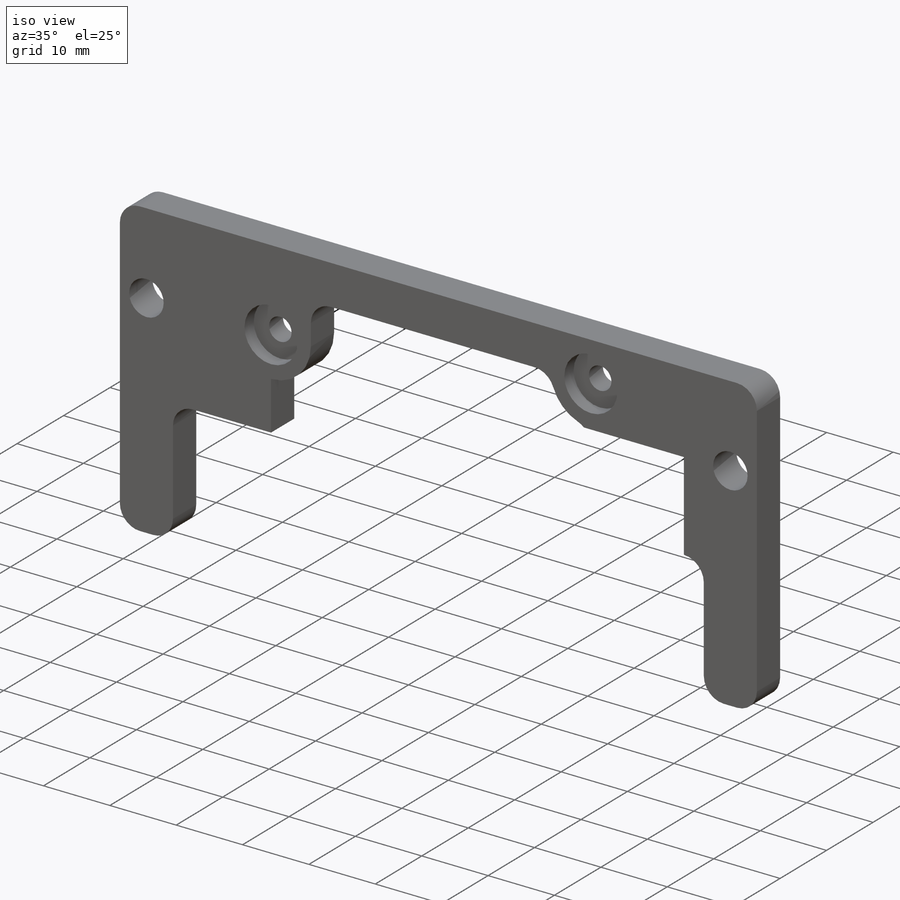
[diagram: iso view]
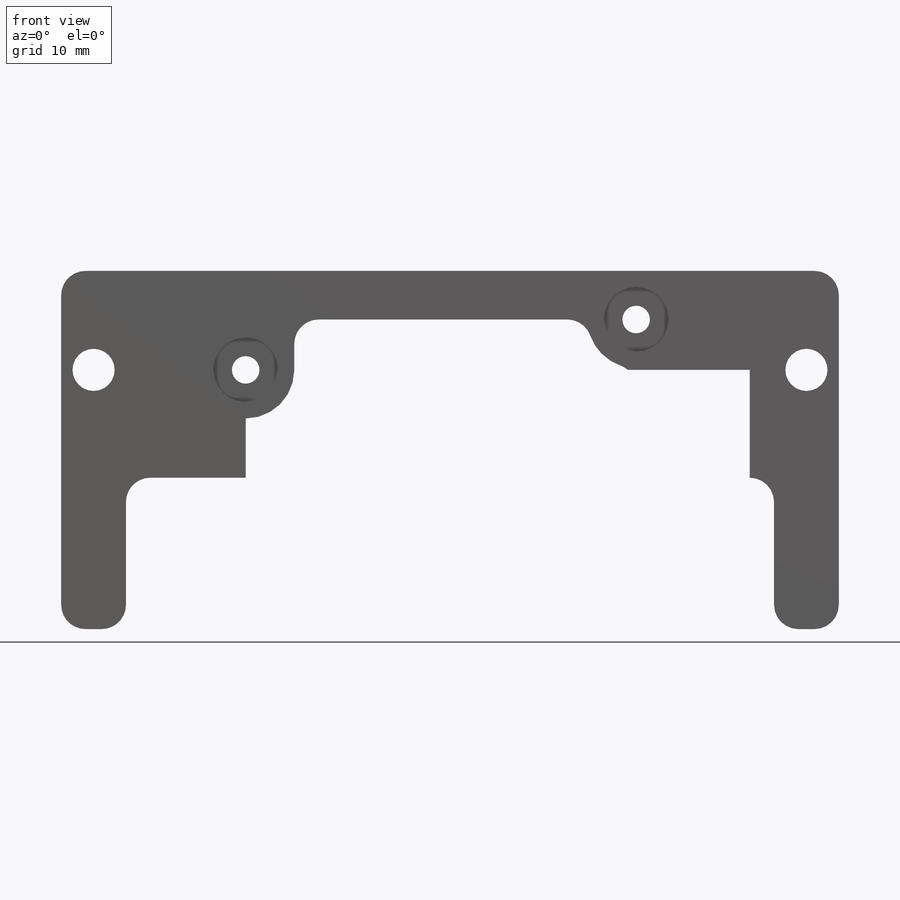
[diagram: front view]
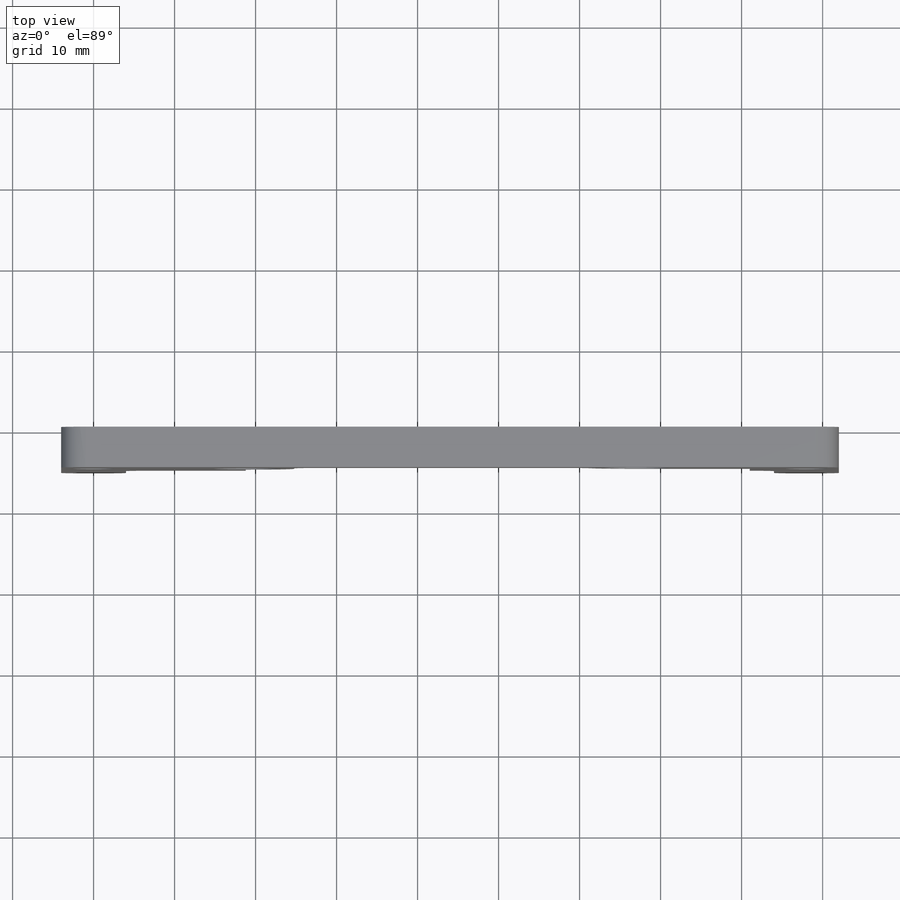
[diagram: top view]
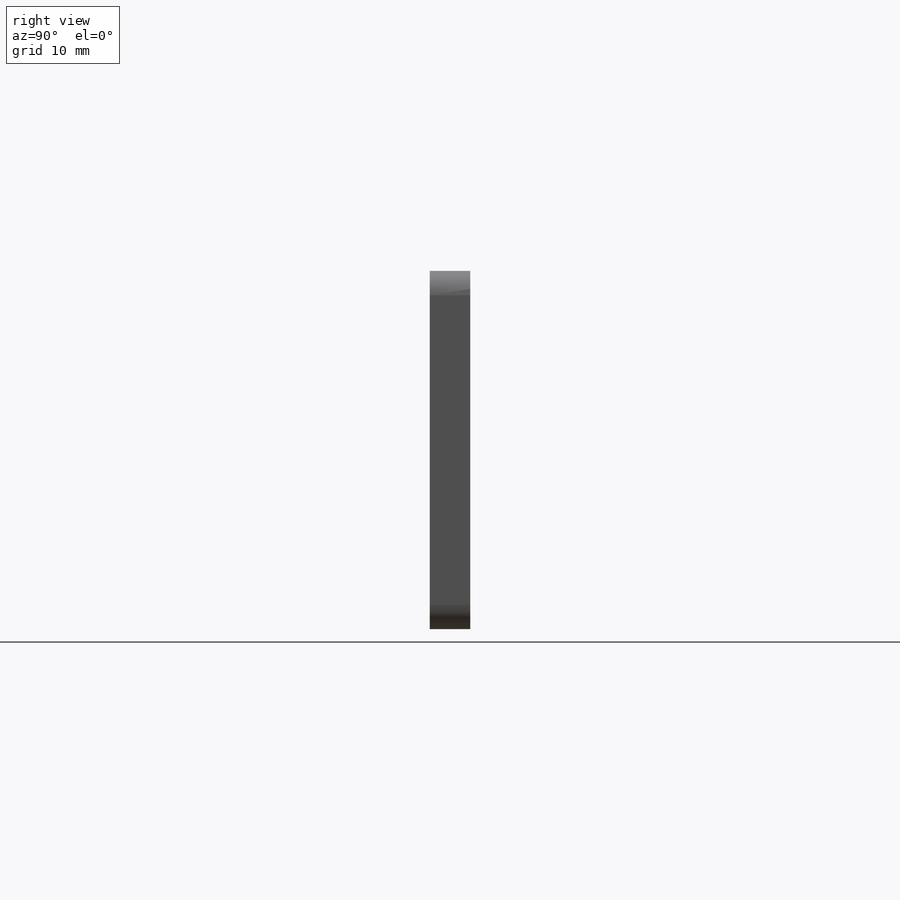
[diagram: right view]
SOLIDWORKS PART (.sldprt)
format: sldprt  version: not decoded by parser v0  size: 233,984 bytes
history: native  units: mm
features: plane x3, sketch x3, cut_extrude x2, material x1, extrude x1 (+10 scaffold rows collapsed)
feature tree (20):
  scaffold x10  (default folders/planes/origin — collapsed)
  material  "Matériau <non spécifié>"
  plane  "Plan de face"
  plane  "Plan de dessus"
  plane  "Plan de droite"
  sketch  "Esquisse1"  dims[c1.D1=~3.978647mm c1.D2=~2.093123mm c1.D8=3.0mm c1.D6=~2.292491mm c2.D1=88.0mm c2.D2=6.22mm c2.D3=48.2mm c2.D4=32.0mm c2.D5=4.0mm c2.D6=4.0mm c2.D7=8.0mm c2.D8=8.0mm c2.D9=6.0mm c3.D4=74.0mm]
  extrude  "Boss.-Extru.1"  Depth=5mm
  sketch  "Esquisse2"  dims[D1=~3.902851mm]
  cut_extrude  "Enlèv. mat.-Extru.1"  Depth=2mm
  sketch  "Esquisse3"  dims[D1=3.0mm D2=3.0mm]
  cut_extrude  "Enlèv. mat.-Extru.2"  Depth=5mm
decode coverage: 6 of 6 modeling features carry decoded parameters
note: ~ marks probable driven/reference dimensions
note: suppression state not decoded; provenance and decode notes live in map.json
